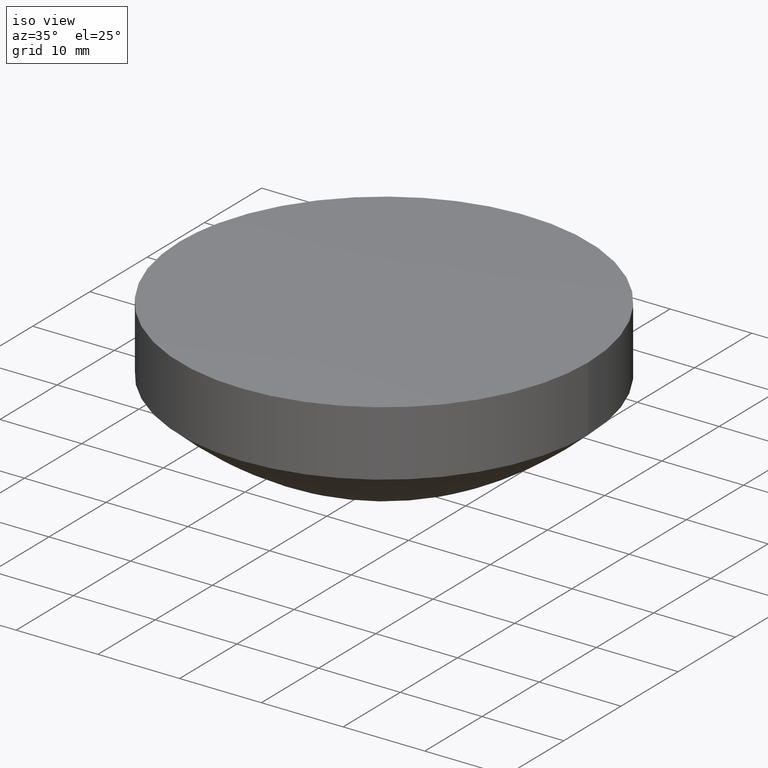
[diagram: clean part render]
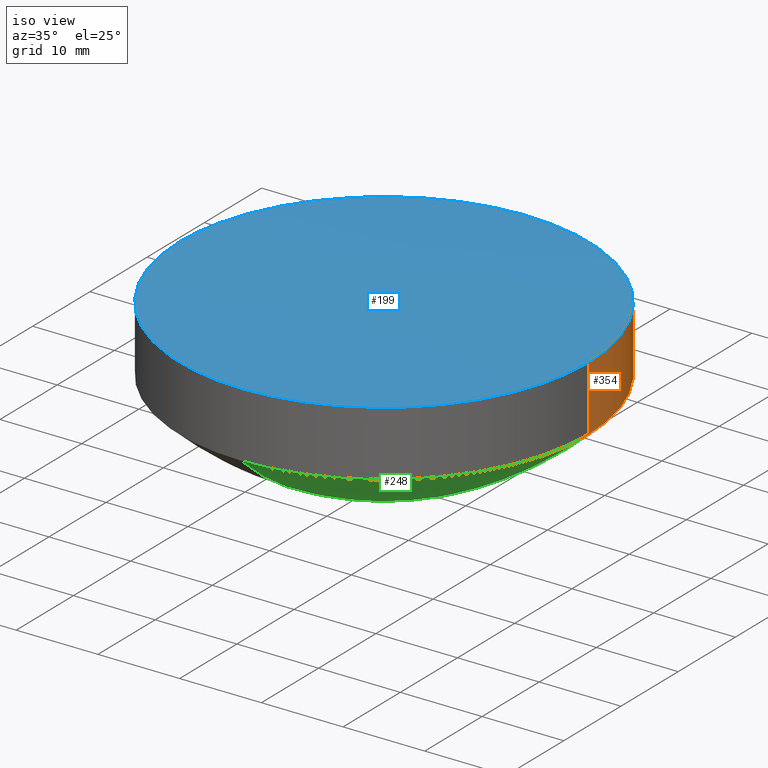
[diagram: same view with three faces highlighted in distinct colors, each labeled with its STEP entity id]
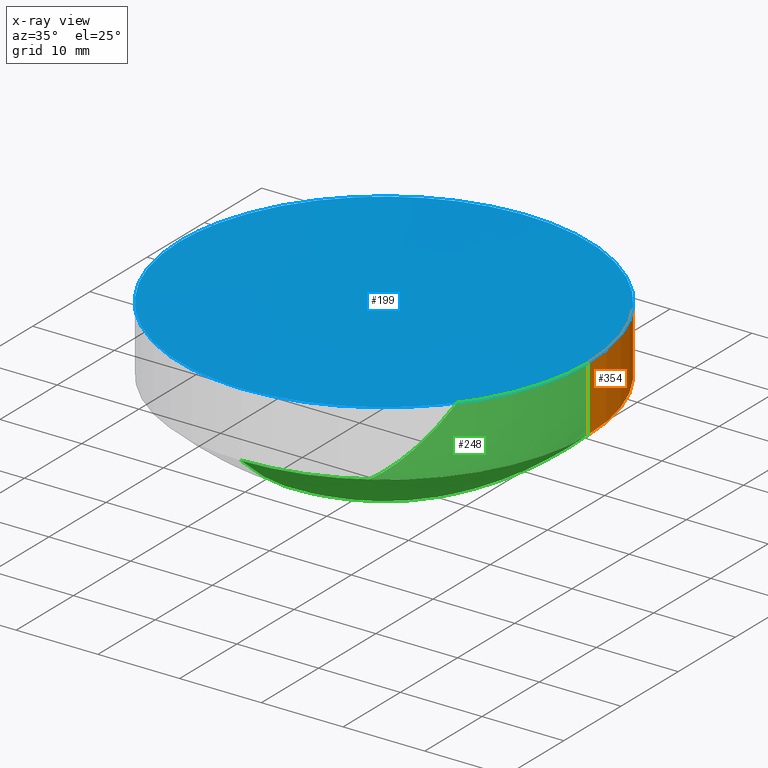
[diagram: x-ray of the same camera — body ghosted, the three highlighted faces saturated]
A machine part, iso view with three faces highlighted in distinct colors.
The next image is the same camera in x-ray (body ghosted, the three faces saturated) — at least one of them is partly hidden behind the body in this view.
Their STEP definitions:

[orange] entity #354 — the highlighted cylindrical surface (partial cylindrical patch) has radius 25 mm, axis along (0, 0, 1).
#28 = EDGE_CURVE ( 'NONE', #44, #234, #72, .T. ) ;
#37 = AXIS2_PLACEMENT_3D ( 'NONE', #368, #622, #98 ) ;
#39 = CARTESIAN_POINT ( 'NONE',  ( -25.00000000000000000, 3.061616997868379887E-15, 10.76935298651310191 ) ) ;
#44 = VERTEX_POINT ( 'NONE', #444 ) ;
#48 = VERTEX_POINT ( 'NONE', #602 ) ;
#70 = CARTESIAN_POINT ( 'NONE',  ( 25.00000000000000000, 0.000000000000000000, 18.77460888595450328 ) ) ;
#72 =( BOUNDED_CURVE ( )  B_SPLINE_CURVE ( 2, ( #340, #121, #227 ),
 .UNSPECIFIED., .F., .F. ) 
 B_SPLINE_CURVE_WITH_KNOTS ( ( 3, 3 ),
 ( 0.000000000000000000, 1.570796326794899667 ),
 .UNSPECIFIED. ) 
 CURVE ( )  GEOMETRIC_REPRESENTATION_ITEM ( )  RATIONAL_B_SPLINE_CURVE ( ( 1.000000000000000000, 0.7071067811865480168, 1.000000000000000000 ) ) 
 REPRESENTATION_ITEM ( '' )  );
#75 = VERTEX_POINT ( 'NONE', #336 ) ;
#81 = CARTESIAN_POINT ( 'NONE',  ( 1.530808498934190141E-15, 25.00000000000000000, 18.77460888595450328 ) ) ;
#98 = DIRECTION ( 'NONE',  ( 1.000000000000000000, 7.105427357601000774E-17, 0.000000000000000000 ) ) ;
#121 = CARTESIAN_POINT ( 'NONE',  ( 25.00000000000000000, 25.00000000000000000, 10.76935298651310546 ) ) ;
#144 = CARTESIAN_POINT ( 'NONE',  ( 1.530808498934190141E-15, 25.00000000000000000, 10.76935298651310191 ) ) ;
#169 =( BOUNDED_CURVE ( )  B_SPLINE_CURVE ( 2, ( #315, #202, #81, #626, #249 ),
 .UNSPECIFIED., .F., .F. ) 
 B_SPLINE_CURVE_WITH_KNOTS ( ( 3, 2, 3 ),
 ( 0.000000000000000000, 1.570796326794899889, 3.141592653589790007 ),
 .UNSPECIFIED. ) 
 CURVE ( )  GEOMETRIC_REPRESENTATION_ITEM ( )  RATIONAL_B_SPLINE_CURVE ( ( 1.000000000000000000, 0.7071067811865480168, 1.000000000000000000, 0.7071067811865480168, 1.000000000000000000 ) ) 
 REPRESENTATION_ITEM ( '' )  );
#197 = CARTESIAN_POINT ( 'NONE',  ( -25.00000000000000000, 3.061616997868379887E-15, 10.76935298651310191 ) ) ;
#202 = CARTESIAN_POINT ( 'NONE',  ( 25.00000000000000000, 25.00000000000000000, 18.77460888595448907 ) ) ;
#227 = CARTESIAN_POINT ( 'NONE',  ( 1.530808498934190141E-15, 25.00000000000000000, 10.76935298651310191 ) ) ;
#234 = VERTEX_POINT ( 'NONE', #515 ) ;
#243 = CYLINDRICAL_SURFACE ( 'NONE', #37, 25.00000000000000000 ) ;
#249 = CARTESIAN_POINT ( 'NONE',  ( -25.00000000000000000, 3.061616997868379887E-15, 18.77460888595450328 ) ) ;
#254 = CARTESIAN_POINT ( 'NONE',  ( -25.00000000000000000, 25.00000000000000000, 10.76935298651310546 ) ) ;
#315 = CARTESIAN_POINT ( 'NONE',  ( 25.00000000000000000, 0.000000000000000000, 18.77460888595450328 ) ) ;
#336 = CARTESIAN_POINT ( 'NONE',  ( 25.00000000000000000, 0.000000000000000000, 18.77460888595450328 ) ) ;
#340 = CARTESIAN_POINT ( 'NONE',  ( 25.00000000000000000, 0.000000000000000000, 10.76935298651310191 ) ) ;
#354 = ADVANCED_FACE ( 'NONE', ( #418 ), #243, .T. ) ;
#368 = CARTESIAN_POINT ( 'NONE',  ( 1.776356839400249676E-15, -1.776356839400249676E-15, 10.76935298651310191 ) ) ;
#371 = B_SPLINE_CURVE_WITH_KNOTS ( 'NONE', 1,
 ( #443, #70 ),
 .UNSPECIFIED., .F., .F.,
 ( 2, 2 ),
 ( 0.000000000000000000, 1.000000000000000000 ),
 .UNSPECIFIED. ) ;
#397 = ORIENTED_EDGE ( 'NONE', *, *, #28, .T. ) ;
#403 = VERTEX_POINT ( 'NONE', #565 ) ;
#408 = B_SPLINE_CURVE_WITH_KNOTS ( 'NONE', 1,
 ( #39, #676 ),
 .UNSPECIFIED., .F., .F.,
 ( 2, 2 ),
 ( 0.000000000000000000, 1.000000000000000000 ),
 .UNSPECIFIED. ) ;
#418 = FACE_OUTER_BOUND ( 'NONE', #655, .T. ) ;
#438 = EDGE_CURVE ( 'NONE', #234, #48, #639, .T. ) ;
#443 = CARTESIAN_POINT ( 'NONE',  ( 25.00000000000000000, 0.000000000000000000, 10.76935298651310191 ) ) ;
#444 = CARTESIAN_POINT ( 'NONE',  ( 25.00000000000000000, 0.000000000000000000, 10.76935298651310191 ) ) ;
#452 = ORIENTED_EDGE ( 'NONE', *, *, #438, .T. ) ;
#476 = ORIENTED_EDGE ( 'NONE', *, *, #521, .T. ) ;
#507 = ORIENTED_EDGE ( 'NONE', *, *, #600, .F. ) ;
#515 = CARTESIAN_POINT ( 'NONE',  ( 1.530808498934190141E-15, 25.00000000000000000, 10.76935298651310191 ) ) ;
#521 = EDGE_CURVE ( 'NONE', #48, #403, #408, .T. ) ;
#530 = EDGE_CURVE ( 'NONE', #75, #403, #169, .T. ) ;
#565 = CARTESIAN_POINT ( 'NONE',  ( -25.00000000000000000, 3.061616997868379887E-15, 18.77460888595450328 ) ) ;
#600 = EDGE_CURVE ( 'NONE', #44, #75, #371, .T. ) ;
#602 = CARTESIAN_POINT ( 'NONE',  ( -25.00000000000000000, 3.061616997868379887E-15, 10.76935298651310191 ) ) ;
#604 = ORIENTED_EDGE ( 'NONE', *, *, #530, .F. ) ;
#622 = DIRECTION ( 'NONE',  ( 0.000000000000000000, 0.000000000000000000, 1.000000000000000000 ) ) ;
#626 = CARTESIAN_POINT ( 'NONE',  ( -25.00000000000000000, 25.00000000000000000, 18.77460888595448907 ) ) ;
#639 =( BOUNDED_CURVE ( )  B_SPLINE_CURVE ( 2, ( #144, #254, #197 ),
 .UNSPECIFIED., .F., .F. ) 
 B_SPLINE_CURVE_WITH_KNOTS ( ( 3, 3 ),
 ( 1.570796326794899889, 3.141592653589790007 ),
 .UNSPECIFIED. ) 
 CURVE ( )  GEOMETRIC_REPRESENTATION_ITEM ( )  RATIONAL_B_SPLINE_CURVE ( ( 1.000000000000000000, 0.7071067811865480168, 1.000000000000000000 ) ) 
 REPRESENTATION_ITEM ( '' )  );
#655 = EDGE_LOOP ( 'NONE', ( #397, #452, #476, #604, #507 ) ) ;
#676 = CARTESIAN_POINT ( 'NONE',  ( -25.00000000000000000, 3.061616997868379887E-15, 18.77460888595450328 ) ) ;

[blue] entity #199 — the highlighted spherical surface has radius 500 mm.
#18 = FACE_OUTER_BOUND ( 'NONE', #608, .T. ) ;
#75 = VERTEX_POINT ( 'NONE', #336 ) ;
#81 = CARTESIAN_POINT ( 'NONE',  ( 1.530808498934190141E-15, 25.00000000000000000, 18.77460888595450328 ) ) ;
#93 = CARTESIAN_POINT ( 'NONE',  ( 25.00000000000000000, -25.00000000000000000, 18.77460888595448907 ) ) ;
#130 = ORIENTED_EDGE ( 'NONE', *, *, #530, .T. ) ;
#135 = CARTESIAN_POINT ( 'NONE',  ( -25.00000000000000000, 3.061616997868379887E-15, 18.77460888595450328 ) ) ;
#139 =( BOUNDED_CURVE ( )  B_SPLINE_CURVE ( 2, ( #135, #471, #522, #93, #239 ),
 .UNSPECIFIED., .F., .F. ) 
 B_SPLINE_CURVE_WITH_KNOTS ( ( 3, 2, 3 ),
 ( 3.141592653589790007, 4.712388980384689674, 6.283185307179590673 ),
 .UNSPECIFIED. ) 
 CURVE ( )  GEOMETRIC_REPRESENTATION_ITEM ( )  RATIONAL_B_SPLINE_CURVE ( ( 1.000000000000000000, 0.7071067811865480168, 1.000000000000000000, 0.7071067811865480168, 1.000000000000000000 ) ) 
 REPRESENTATION_ITEM ( '' )  );
#169 =( BOUNDED_CURVE ( )  B_SPLINE_CURVE ( 2, ( #315, #202, #81, #626, #249 ),
 .UNSPECIFIED., .F., .F. ) 
 B_SPLINE_CURVE_WITH_KNOTS ( ( 3, 2, 3 ),
 ( 0.000000000000000000, 1.570796326794899889, 3.141592653589790007 ),
 .UNSPECIFIED. ) 
 CURVE ( )  GEOMETRIC_REPRESENTATION_ITEM ( )  RATIONAL_B_SPLINE_CURVE ( ( 1.000000000000000000, 0.7071067811865480168, 1.000000000000000000, 0.7071067811865480168, 1.000000000000000000 ) ) 
 REPRESENTATION_ITEM ( '' )  );
#199 = ADVANCED_FACE ( 'NONE', ( #18 ), #447, .T. ) ;
#202 = CARTESIAN_POINT ( 'NONE',  ( 25.00000000000000000, 25.00000000000000000, 18.77460888595448907 ) ) ;
#239 = CARTESIAN_POINT ( 'NONE',  ( 25.00000000000000000, 0.000000000000000000, 18.77460888595450328 ) ) ;
#249 = CARTESIAN_POINT ( 'NONE',  ( -25.00000000000000000, 3.061616997868379887E-15, 18.77460888595450328 ) ) ;
#315 = CARTESIAN_POINT ( 'NONE',  ( 25.00000000000000000, 0.000000000000000000, 18.77460888595450328 ) ) ;
#336 = CARTESIAN_POINT ( 'NONE',  ( 25.00000000000000000, 0.000000000000000000, 18.77460888595450328 ) ) ;
#394 = DIRECTION ( 'NONE',  ( 0.000000000000000000, -1.000000000000000000, 4.440892098500626162E-16 ) ) ;
#403 = VERTEX_POINT ( 'NONE', #565 ) ;
#447 = SPHERICAL_SURFACE ( 'NONE', #586, 500.0000000000000000 ) ;
#471 = CARTESIAN_POINT ( 'NONE',  ( -25.00000000000000000, -25.00000000000000000, 18.77460888595448907 ) ) ;
#473 = EDGE_CURVE ( 'NONE', #403, #75, #139, .T. ) ;
#505 = ORIENTED_EDGE ( 'NONE', *, *, #473, .T. ) ;
#522 = CARTESIAN_POINT ( 'NONE',  ( -4.592425496802569633E-15, -25.00000000000000000, 18.77460888595450328 ) ) ;
#530 = EDGE_CURVE ( 'NONE', #75, #403, #169, .T. ) ;
#546 = DIRECTION ( 'NONE',  ( 0.000000000000000000, 4.440892098500626162E-16, 1.000000000000000000 ) ) ;
#565 = CARTESIAN_POINT ( 'NONE',  ( -25.00000000000000000, 3.061616997868379887E-15, 18.77460888595450328 ) ) ;
#586 = AXIS2_PLACEMENT_3D ( 'NONE', #598, #546, #394 ) ;
#598 = CARTESIAN_POINT ( 'NONE',  ( -5.684341886080798963E-14, 8.526512829121199706E-14, -480.6000000000000227 ) ) ;
#608 = EDGE_LOOP ( 'NONE', ( #130, #505 ) ) ;
#626 = CARTESIAN_POINT ( 'NONE',  ( -25.00000000000000000, 25.00000000000000000, 18.77460888595448907 ) ) ;

[green] entity #248 — the highlighted face is a freeform B-spline surface patch.
#3 = CARTESIAN_POINT ( 'NONE',  ( 9.031328295233830517, -6.766054006596770075E-15, 1.329141889889509986 ) ) ;
#6 = CARTESIAN_POINT ( 'NONE',  ( 4.864470756008749674, -6.000614694409519705E-15, 0.3780127833940800097 ) ) ;
#9 = CARTESIAN_POINT ( 'NONE',  ( -3.823211282214358242, -3.823211282214336926, 0.2278546630517423177 ) ) ;
#15 = CARTESIAN_POINT ( 'NONE',  ( -1.215333604269309965E-14, -19.46172094395829788, 6.363201708622150399 ) ) ;
#21 = CARTESIAN_POINT ( 'NONE',  ( 0.000000000000000000, 0.000000000000000000, 0.000000000000000000 ) ) ;
#23 = CARTESIAN_POINT ( 'NONE',  ( -19.46172094395829788, 5.854623416421539817E-15, 6.363201708622150399 ) ) ;
#24 = CARTESIAN_POINT ( 'NONE',  ( 0.000000000000000000, 13.20684684988859914, 2.866247647743300320 ) ) ;
#25 = CARTESIAN_POINT ( 'NONE',  ( 0.000000000000000000, 0.000000000000000000, 0.000000000000000000 ) ) ;
#26 = CARTESIAN_POINT ( 'NONE',  ( 18.40959124445349815, -8.488812961945388815E-15, 5.677625292109239830 ) ) ;
#27 = CARTESIAN_POINT ( 'NONE',  ( 0.000000000000000000, 19.46172094395829788, 6.363201708622150399 ) ) ;
#28 = EDGE_CURVE ( 'NONE', #44, #234, #72, .T. ) ;
#29 = CARTESIAN_POINT ( 'NONE',  ( 0.000000000000000000, 13.20684684988859914, 2.866247647743300320 ) ) ;
#30 = CARTESIAN_POINT ( 'NONE',  ( 0.000000000000000000, 2.778867257252229717, 0.1218098665559840116 ) ) ;
#31 = CARTESIAN_POINT ( 'NONE',  ( -20.85846900400949977, -20.85846900400949977, 7.346323978459765591 ) ) ;
#32 = CARTESIAN_POINT ( 'NONE',  ( 2.778867257252236378, 2.778867257252229273, 0.1218098665559840255 ) ) ;
#33 = CARTESIAN_POINT ( 'NONE',  ( -11.11853514199950688, -11.11853514199950688, 2.021718256513889589 ) ) ;
#34 = CARTESIAN_POINT ( 'NONE',  ( 24.99999999999999645, -25.00000000000025935, 10.76935298651310546 ) ) ;
#35 = CARTESIAN_POINT ( 'NONE',  ( 20.85846900400950332, -8.938664508406890628E-15, 7.346323978459770032 ) ) ;
#36 = CARTESIAN_POINT ( 'NONE',  ( 25.00000000000000355, -25.00000000000000355, 10.76935298651310546 ) ) ;
#38 = CARTESIAN_POINT ( 'NONE',  ( -16.33441800193228133, 16.33441800193239146, 4.430272686558109463 ) ) ;
#40 = CARTESIAN_POINT ( 'NONE',  ( 0.000000000000000000, 24.15614782068159982, 10.00039978366080184 ) ) ;
#42 = CARTESIAN_POINT ( 'NONE',  ( 13.20684684988859914, -7.533084321507529499E-15, 2.866247647743300320 ) ) ;
#44 = VERTEX_POINT ( 'NONE', #444 ) ;
#46 = CARTESIAN_POINT ( 'NONE',  ( 0.000000000000000000, 9.031328295233830517, 1.329141889889509986 ) ) ;
#47 = CARTESIAN_POINT ( 'NONE',  ( -1.125882628438199991E-14, -12.15749446058419814, 2.427402912589510464 ) ) ;
#51 = CARTESIAN_POINT ( 'NONE',  ( -1.049313046363300038E-14, -5.905113600387469575, 0.5636193277801669899 ) ) ;
#55 = CARTESIAN_POINT ( 'NONE',  ( 4.864470756008748786, -4.864470756008769214, 0.3780127833940796767 ) ) ;
#58 = CARTESIAN_POINT ( 'NONE',  ( 0.000000000000000000, 5.905113600387469575, 0.5636193277801659907 ) ) ;
#61 = CARTESIAN_POINT ( 'NONE',  ( -1.023817096262419816E-14, -3.823211282214349804, 0.2278546630517420124 ) ) ;
#67 = CARTESIAN_POINT ( 'NONE',  ( -1.283157961456979886E-14, -25.00000000000000000, 10.76935298651310191 ) ) ;
#71 = CARTESIAN_POINT ( 'NONE',  ( -1.202448731581449846E-14, -18.40959124445349815, 5.677625292109239830 ) ) ;
#72 =( BOUNDED_CURVE ( )  B_SPLINE_CURVE ( 2, ( #340, #121, #227 ),
 .UNSPECIFIED., .F., .F. ) 
 B_SPLINE_CURVE_WITH_KNOTS ( ( 3, 3 ),
 ( 0.000000000000000000, 1.570796326794899667 ),
 .UNSPECIFIED. ) 
 CURVE ( )  GEOMETRIC_REPRESENTATION_ITEM ( )  RATIONAL_B_SPLINE_CURVE ( ( 1.000000000000000000, 0.7071067811865480168, 1.000000000000000000 ) ) 
 REPRESENTATION_ITEM ( '' )  );
#77 = CARTESIAN_POINT ( 'NONE',  ( 7.888609052210119806E-31, 15.28359183643270036, 3.871337583447099995 ) ) ;
#80 = CARTESIAN_POINT ( 'NONE',  ( 2.778867257252229717, -5.617495547053119648E-15, 0.1218098665559829985 ) ) ;
#82 = CARTESIAN_POINT ( 'NONE',  ( -24.15614782068171706, -24.15614782068157851, 10.00039978366080007 ) ) ;
#83 = CARTESIAN_POINT ( 'NONE',  ( 1.564219604220981052, -1.564219604220997928, 0.02941336789115638062 ) ) ;
#85 = CARTESIAN_POINT ( 'NONE',  ( 22.79029073525660110, -22.79029073525660110, 8.829490268801800212 ) ) ;
#86 = CARTESIAN_POINT ( 'NONE',  ( -0.6950013867032635018, -0.6950013867032492909, 0.000000000000000000 ) ) ;
#88 = CARTESIAN_POINT ( 'NONE',  ( -11.11853514199950688, 11.11853514199950688, 2.021718256513889589 ) ) ;
#89 = CARTESIAN_POINT ( 'NONE',  ( 0.000000000000000000, 5.905113600387469575, 0.5636193277801659907 ) ) ;
#90 = CARTESIAN_POINT ( 'NONE',  ( 0.000000000000000000, 25.00000000000000000, 10.76935298651310191 ) ) ;
#91 = CARTESIAN_POINT ( 'NONE',  ( 25.00000000000000000, -9.699451410078289719E-15, 10.76935298651310191 ) ) ;
#92 = CARTESIAN_POINT ( 'NONE',  ( -13.20684684988859914, 5.471622839502929115E-15, 2.866247647743300320 ) ) ;
#94 = CARTESIAN_POINT ( 'NONE',  ( -1.232438834678879987E-14, -20.85846900400950332, 7.346323978459770032 ) ) ;
#95 = CARTESIAN_POINT ( 'NONE',  ( -1.049313046363300038E-14, -5.905113600387469575, 0.5636193277801669899 ) ) ;
#97 = CARTESIAN_POINT ( 'NONE',  ( 0.000000000000000000, 16.33441800193239857, 4.430272686558109463 ) ) ;
#101 = CARTESIAN_POINT ( 'NONE',  ( 7.888609052210119806E-31, 15.28359183643270036, 3.871337583447099995 ) ) ;
#104 = CARTESIAN_POINT ( 'NONE',  ( -7.888609052210119806E-31, 4.864470756008760333, 0.3780127833940810089 ) ) ;
#108 = CARTESIAN_POINT ( 'NONE',  ( -7.991543677521645961, 7.991543677521645961, 1.035149238036799257 ) ) ;
#111 = CARTESIAN_POINT ( 'NONE',  ( -5.905113600387489114, -5.905113600387467798, 0.5636193277801673229 ) ) ;
#114 = CARTESIAN_POINT ( 'NONE',  ( -5.905113600387480233, 5.024520626891460206E-15, 0.5636193277801669899 ) ) ;
#121 = CARTESIAN_POINT ( 'NONE',  ( 25.00000000000000000, 25.00000000000000000, 10.76935298651310546 ) ) ;
#123 = CARTESIAN_POINT ( 'NONE',  ( -1.164166279889760023E-14, -15.28359183643270036, 3.871337583447099995 ) ) ;
#125 = VERTEX_POINT ( 'NONE', #503 ) ;
#128 = CARTESIAN_POINT ( 'NONE',  ( 3.823211282214340034, -5.809338432159899713E-15, 0.2278546630517420124 ) ) ;
#131 = CARTESIAN_POINT ( 'NONE',  ( 0.000000000000000000, 20.85846900400950332, 7.346323978459770032 ) ) ;
#133 = CARTESIAN_POINT ( 'NONE',  ( 17.37214179088920574, 17.37214179088920574, 5.033512682667418581 ) ) ;
#134 = CARTESIAN_POINT ( 'NONE',  ( -9.961524269848648577E-15, -1.564219604220989712, 0.02941336789115640143 ) ) ;
#136 = CARTESIAN_POINT ( 'NONE',  ( 0.000000000000000000, 16.33441800193239857, 4.430272686558109463 ) ) ;
#137 = CARTESIAN_POINT ( 'NONE',  ( 0.000000000000000000, 0.6950013867032539538, 0.000000000000000000 ) ) ;
#138 = CARTESIAN_POINT ( 'NONE',  ( -1.177035188890149828E-14, -16.33441800193239857, 4.430272686558109463 ) ) ;
#140 = CARTESIAN_POINT ( 'NONE',  ( 0.000000000000000000, 18.40959124445349815, 5.677625292109239830 ) ) ;
#141 = CARTESIAN_POINT ( 'NONE',  ( -1.074864445519370031E-14, -7.991543677521639744, 1.035149238036800146 ) ) ;
#142 = CARTESIAN_POINT ( 'NONE',  ( -1.564219604220999926, 4.758717529999299291E-15, 0.02941336789115570061 ) ) ;
#143 = CARTESIAN_POINT ( 'NONE',  ( -10.07908763383689887, 10.07908763383699835, 1.653328185034991238 ) ) ;
#145 = CARTESIAN_POINT ( 'NONE',  ( -18.40959124445349815, 5.790199052982209243E-15, 5.677625292109239830 ) ) ;
#146 = CARTESIAN_POINT ( 'NONE',  ( -1.100429485761179963E-14, -10.07908763383690065, 1.653328185035000120 ) ) ;
#149 = CARTESIAN_POINT ( 'NONE',  ( 0.000000000000000000, 14.24541506404810143, 3.349350597949509734 ) ) ;
#152 = CARTESIAN_POINT ( 'NONE',  ( -15.28359183643270036, 5.598786794523760128E-15, 3.871337583447099995 ) ) ;
#153 = B_SPLINE_CURVE_WITH_KNOTS ( 'NONE', 3,
 ( #67, #284, #390, #500, #15, #71, #649, #175, #123, #288, #173, #232, #223, #146, #464, #141, #572, #95, #200, #303, #469, #674, #420, #252 ),
 .UNSPECIFIED., .F., .F.,
 ( 4, 1, 1, 1, 1, 1, 1, 1, 1, 1, 1, 1, 1, 1, 1, 1, 1, 1, 1, 1, 1, 4 ),
 ( 0.000000000000000000, 0.1229010503966929957, 0.1935708684875130092, 0.2621222389561400079, 0.3067336890552199713, 0.3287332553817179925, 0.3935804273098579831, 0.4359173143977180254, 0.4568373513230660210, 0.5186738697918750196, 0.5591905958425089640, 0.5792556588951830454, 0.6387441682536969534, 0.6778732220164499500, 0.6972968285093580354, 0.7550674466977830290, 0.7932207973581240079, 0.8122067193442279454, 0.8688628073624710124, 0.9064369206342729468, 0.9251819328508389395, 1.000000000000000000 ),
 .UNSPECIFIED. ) ;
#156 = CARTESIAN_POINT ( 'NONE',  ( 0.000000000000000000, 10.07908763383690065, 1.653328185034990128 ) ) ;
#159 = CARTESIAN_POINT ( 'NONE',  ( 10.07908763383690065, -6.958524274641328746E-15, 1.653328185035000120 ) ) ;
#163 = CARTESIAN_POINT ( 'NONE',  ( -3.823211282214351581, 3.823211282214351581, 0.2278546630517423177 ) ) ;
#166 = CARTESIAN_POINT ( 'NONE',  ( 0.000000000000000000, 6.951195123766310324, 0.7773047103505090760 ) ) ;
#173 = CARTESIAN_POINT ( 'NONE',  ( -1.138733488885590034E-14, -13.20684684988859914, 2.866247647743300320 ) ) ;
#175 = CARTESIAN_POINT ( 'NONE',  ( -1.177035188890149828E-14, -16.33441800193239857, 4.430272686558109463 ) ) ;
#177 = VERTEX_POINT ( 'NONE', #646 ) ;
#181 = ORIENTED_EDGE ( 'NONE', *, *, #28, .F. ) ;
#183 = CARTESIAN_POINT ( 'NONE',  ( 0.000000000000000000, 24.15614782068159982, 10.00039978366080184 ) ) ;
#184 = B_SPLINE_CURVE_WITH_KNOTS ( 'NONE', 3,
 ( #606, #183, #554, #131, #27, #304, #189, #246, #77, #516, #24, #410, #236, #465, #455, #355, #187, #89, #357, #306, #30, #310, #570, #25 ),
 .UNSPECIFIED., .F., .F.,
 ( 4, 1, 1, 1, 1, 1, 1, 1, 1, 1, 1, 1, 1, 1, 1, 1, 1, 1, 1, 1, 1, 4 ),
 ( 0.000000000000000000, 0.1229010503966929957, 0.1935708684875130092, 0.2621222389561400079, 0.3067336890552199713, 0.3287332553817179925, 0.3935804273098579831, 0.4359173143977180254, 0.4568373513230660210, 0.5186738697918750196, 0.5591905958425089640, 0.5792556588951830454, 0.6387441682536969534, 0.6778732220164499500, 0.6972968285093580354, 0.7550674466977830290, 0.7932207973581240079, 0.8122067193442279454, 0.8688628073624710124, 0.9064369206342729468, 0.9251819328508389395, 1.000000000000000000 ),
 .UNSPECIFIED. ) ;
#185 = CARTESIAN_POINT ( 'NONE',  ( 7.888609052210119806E-31, 22.79029073525660110, 8.829490268801798436 ) ) ;
#186 = CARTESIAN_POINT ( 'NONE',  ( 0.000000000000000000, 2.778867257252229717, 0.1218098665559840116 ) ) ;
#187 = CARTESIAN_POINT ( 'NONE',  ( 0.000000000000000000, 6.951195123766310324, 0.7773047103505090760 ) ) ;
#188 = CARTESIAN_POINT ( 'NONE',  ( 0.000000000000000000, 20.85846900400950332, 7.346323978459770032 ) ) ;
#189 = CARTESIAN_POINT ( 'NONE',  ( 0.000000000000000000, 17.37214179088919863, 5.033512682667420357 ) ) ;
#190 = CARTESIAN_POINT ( 'NONE',  ( 0.000000000000000000, 11.11853514199949977, 2.021718256513890033 ) ) ;
#193 = CARTESIAN_POINT ( 'NONE',  ( 19.46172094395830143, -19.46172094395830143, 6.363201708622155728 ) ) ;
#195 = CARTESIAN_POINT ( 'NONE',  ( -1.564219604220989490, 1.564219604220997928, 0.02941336789115489223 ) ) ;
#196 = CARTESIAN_POINT ( 'NONE',  ( 0.000000000000000000, 11.11853514199949977, 2.021718256513890033 ) ) ;
#198 = CARTESIAN_POINT ( 'NONE',  ( 22.79029073525660110, 22.79029073525660110, 8.829490268801800212 ) ) ;
#200 = CARTESIAN_POINT ( 'NONE',  ( -1.036568847079060044E-14, -4.864470756008760333, 0.3780127833940800097 ) ) ;
#201 = CARTESIAN_POINT ( 'NONE',  ( 14.24541506404810143, -7.723866207382518999E-15, 3.349350597949509734 ) ) ;
#204 = CARTESIAN_POINT ( 'NONE',  ( 11.11853514199950688, 11.11853514199950688, 2.021718256513889589 ) ) ;
#206 = CARTESIAN_POINT ( 'NONE',  ( -9.031328295233839398, 5.215946067866010359E-15, 1.329141889889509986 ) ) ;
#210 = CARTESIAN_POINT ( 'NONE',  ( -1.087598134558209911E-14, -9.031328295233830517, 1.329141889889509986 ) ) ;
#213 = CARTESIAN_POINT ( 'NONE',  ( 4.864470756008762109, 4.864470756008748786, 0.3780127833940811755 ) ) ;
#216 = CARTESIAN_POINT ( 'NONE',  ( 10.07908763383689887, -10.07908763383699835, 1.653328185034999676 ) ) ;
#218 = EDGE_CURVE ( 'NONE', #177, #125, #153, .T. ) ;
#223 = CARTESIAN_POINT ( 'NONE',  ( -1.113159046398710005E-14, -11.11853514199949977, 2.021718256513890033 ) ) ;
#227 = CARTESIAN_POINT ( 'NONE',  ( 1.530808498934190141E-15, 25.00000000000000000, 10.76935298651310191 ) ) ;
#232 = CARTESIAN_POINT ( 'NONE',  ( -1.125882628438199991E-14, -12.15749446058419814, 2.427402912589510464 ) ) ;
#234 = VERTEX_POINT ( 'NONE', #515 ) ;
#236 = CARTESIAN_POINT ( 'NONE',  ( 0.000000000000000000, 11.11853514199949977, 2.021718256513890033 ) ) ;
#237 = CARTESIAN_POINT ( 'NONE',  ( -17.37214179088919863, 5.726673595352979530E-15, 5.033512682667420357 ) ) ;
#238 = CARTESIAN_POINT ( 'NONE',  ( -9.855075739064291030E-15, -0.6950013867032539538, 0.000000000000000000 ) ) ;
#240 = CARTESIAN_POINT ( 'NONE',  ( 18.40959124445348394, 18.40959124445348394, 5.677625292109241606 ) ) ;
#241 = CARTESIAN_POINT ( 'NONE',  ( 0.000000000000000000, 2.778867257252229717, 0.1218098665559840116 ) ) ;
#242 = CARTESIAN_POINT ( 'NONE',  ( 12.15749446058419814, -7.340321414796639418E-15, 2.427402912589510464 ) ) ;
#244 = CARTESIAN_POINT ( 'NONE',  ( -1.272823752753419907E-14, -24.15614782068159982, 10.00039978366080184 ) ) ;
#245 = CARTESIAN_POINT ( 'NONE',  ( 0.000000000000000000, 25.00000000000000000, 10.76935298651310191 ) ) ;
#246 = CARTESIAN_POINT ( 'NONE',  ( 0.000000000000000000, 16.33441800193239857, 4.430272686558109463 ) ) ;
#247 = CARTESIAN_POINT ( 'NONE',  ( -1.113159046398710005E-14, -11.11853514199949977, 2.021718256513890033 ) ) ;
#248 = ADVANCED_FACE ( 'NONE', ( #308 ), #568, .T. ) ;
#251 = CARTESIAN_POINT ( 'NONE',  ( 0.000000000000000000, 19.46172094395829788, 6.363201708622150399 ) ) ;
#252 = CARTESIAN_POINT ( 'NONE',  ( 0.000000000000000000, 0.000000000000000000, 0.000000000000000000 ) ) ;
#253 = CARTESIAN_POINT ( 'NONE',  ( -14.24541506404807834, -14.24541506404807834, 3.349350597949512842 ) ) ;
#255 = CARTESIAN_POINT ( 'NONE',  ( 0.000000000000000000, 20.85846900400950332, 7.346323978459770032 ) ) ;
#257 = CARTESIAN_POINT ( 'NONE',  ( -12.15749446058419814, 5.407368537265959970E-15, 2.427402912589510464 ) ) ;
#261 = CARTESIAN_POINT ( 'NONE',  ( 9.031328295233834069, 9.031328295233819858, 1.329141889889510431 ) ) ;
#262 = CARTESIAN_POINT ( 'NONE',  ( -13.20684684988860091, -13.20684684988860091, 2.866247647743300764 ) ) ;
#266 = CARTESIAN_POINT ( 'NONE',  ( 0.000000000000000000, 9.031328295233830517, 1.329141889889509986 ) ) ;
#269 = CARTESIAN_POINT ( 'NONE',  ( -10.07908763383699835, -10.07908763383689887, 1.653328185034999676 ) ) ;
#273 = CARTESIAN_POINT ( 'NONE',  ( -4.864470756008762109, 4.864470756008762109, 0.3780127833940811755 ) ) ;
#277 = CARTESIAN_POINT ( 'NONE',  ( -7.991543677521645961, -7.991543677521645961, 1.035149238036799257 ) ) ;
#284 = CARTESIAN_POINT ( 'NONE',  ( -1.272823752753419907E-14, -24.15614782068159982, 10.00039978366080184 ) ) ;
#288 = CARTESIAN_POINT ( 'NONE',  ( -1.151452281277259944E-14, -14.24541506404810143, 3.349350597949509734 ) ) ;
#292 = ORIENTED_EDGE ( 'NONE', *, *, #218, .T. ) ;
#294 = CARTESIAN_POINT ( 'NONE',  ( 0.000000000000000000, 0.000000000000000000, 0.000000000000000000 ) ) ;
#295 = ORIENTED_EDGE ( 'NONE', *, *, #296, .F. ) ;
#296 = EDGE_CURVE ( 'NONE', #234, #125, #184, .T. ) ;
#297 = CARTESIAN_POINT ( 'NONE',  ( 0.000000000000000000, 0.000000000000000000, 0.000000000000000000 ) ) ;
#299 = CARTESIAN_POINT ( 'NONE',  ( -20.85846900400950332, 5.940149568469379669E-15, 7.346323978459770032 ) ) ;
#300 = CARTESIAN_POINT ( 'NONE',  ( 0.6950013867032536208, 0.6950013867032492909, 0.000000000000000000 ) ) ;
#302 = CARTESIAN_POINT ( 'NONE',  ( 7.888609052210119806E-31, 22.79029073525660110, 8.829490268801798436 ) ) ;
#303 = CARTESIAN_POINT ( 'NONE',  ( -1.023817096262419816E-14, -3.823211282214349804, 0.2278546630517420124 ) ) ;
#304 = CARTESIAN_POINT ( 'NONE',  ( 0.000000000000000000, 18.40959124445349815, 5.677625292109239830 ) ) ;
#305 = CARTESIAN_POINT ( 'NONE',  ( 14.24541506404807834, -14.24541506404807834, 3.349350597949512842 ) ) ;
#306 = CARTESIAN_POINT ( 'NONE',  ( 0.000000000000000000, 3.823211282214349804, 0.2278546630517420124 ) ) ;
#307 = CARTESIAN_POINT ( 'NONE',  ( 22.79029073525660110, -9.293534403361159775E-15, 8.829490268801798436 ) ) ;
#308 = FACE_OUTER_BOUND ( 'NONE', #319, .T. ) ;
#309 = CARTESIAN_POINT ( 'NONE',  ( 0.000000000000000000, 12.15749446058419814, 2.427402912589510464 ) ) ;
#310 = CARTESIAN_POINT ( 'NONE',  ( 7.888609052210119806E-31, 1.564219604220989712, 0.02941336789115490263 ) ) ;
#311 = CARTESIAN_POINT ( 'NONE',  ( -1.256096827675829896E-14, -22.79029073525660110, 8.829490268801798436 ) ) ;
#314 = CARTESIAN_POINT ( 'NONE',  ( 7.888609052210119806E-31, 15.28359183643270036, 3.871337583447099995 ) ) ;
#317 = CARTESIAN_POINT ( 'NONE',  ( -1.100429485761179963E-14, -10.07908763383690065, 1.653328185035000120 ) ) ;
#318 = CARTESIAN_POINT ( 'NONE',  ( 15.28359183643268793, -15.28359183643268793, 3.871337583447103103 ) ) ;
#319 = EDGE_LOOP ( 'NONE', ( #347, #292, #295, #181 ) ) ;
#322 = CARTESIAN_POINT ( 'NONE',  ( -1.036568847079060044E-14, -4.864470756008760333, 0.3780127833940800097 ) ) ;
#325 = CARTESIAN_POINT ( 'NONE',  ( 5.905113600387467798, -5.905113600387482897, 0.5636193277801673229 ) ) ;
#328 = CARTESIAN_POINT ( 'NONE',  ( -9.031328295233834069, 9.031328295233834069, 1.329141889889510431 ) ) ;
#331 = CARTESIAN_POINT ( 'NONE',  ( 5.905113600387482897, 5.905113600387467798, 0.5636193277801658796 ) ) ;
#340 = CARTESIAN_POINT ( 'NONE',  ( 25.00000000000000000, 0.000000000000000000, 10.76935298651310191 ) ) ;
#345 = CARTESIAN_POINT ( 'NONE',  ( -1.564219604220997928, -1.564219604220989490, 0.02941336789115638062 ) ) ;
#347 = ORIENTED_EDGE ( 'NONE', *, *, #494, .F. ) ;
#349 = CARTESIAN_POINT ( 'NONE',  ( 0.000000000000000000, 3.823211282214349804, 0.2278546630517420124 ) ) ;
#350 = CARTESIAN_POINT ( 'NONE',  ( 24.15614782068171706, 24.15614782068157851, 10.00039978366080007 ) ) ;
#351 = CARTESIAN_POINT ( 'NONE',  ( 0.000000000000000000, 0.000000000000000000, 0.000000000000000000 ) ) ;
#353 = CARTESIAN_POINT ( 'NONE',  ( -24.15614782068157851, 24.15614782068171706, 10.00039978366080007 ) ) ;
#355 = CARTESIAN_POINT ( 'NONE',  ( 0.000000000000000000, 7.991543677521639744, 1.035149238036800146 ) ) ;
#356 = CARTESIAN_POINT ( 'NONE',  ( 12.15749446058419814, 12.15749446058419814, 2.427402912589510020 ) ) ;
#357 = CARTESIAN_POINT ( 'NONE',  ( -7.888609052210119806E-31, 4.864470756008760333, 0.3780127833940810089 ) ) ;
#358 = CARTESIAN_POINT ( 'NONE',  ( -24.15614782068159982, 6.142074158842060336E-15, 10.00039978366080184 ) ) ;
#359 = CARTESIAN_POINT ( 'NONE',  ( -1.283157961456979886E-14, -25.00000000000000000, 10.76935298651310191 ) ) ;
#360 = CARTESIAN_POINT ( 'NONE',  ( -0.6950013867032589499, 4.705493264607110262E-15, 0.000000000000000000 ) ) ;
#361 = CARTESIAN_POINT ( 'NONE',  ( -10.07908763383700013, 5.280102823880859831E-15, 1.653328185035000120 ) ) ;
#362 = CARTESIAN_POINT ( 'NONE',  ( -1.283157961456979886E-14, -25.00000000000000000, 10.76935298651310191 ) ) ;
#363 = CARTESIAN_POINT ( 'NONE',  ( 19.46172094395830143, 19.46172094395830143, 6.363201708622155728 ) ) ;
#367 = CARTESIAN_POINT ( 'NONE',  ( -1.138733488885590034E-14, -13.20684684988859914, 2.866247647743300320 ) ) ;
#370 = CARTESIAN_POINT ( 'NONE',  ( -1.151452281277259944E-14, -14.24541506404810143, 3.349350597949509734 ) ) ;
#374 = CARTESIAN_POINT ( 'NONE',  ( 6.951195123766318318, 6.951195123766305883, 0.7773047103505097422 ) ) ;
#377 = CARTESIAN_POINT ( 'NONE',  ( -9.031328295233834069, -9.031328295233834069, 1.329141889889510431 ) ) ;
#381 = CARTESIAN_POINT ( 'NONE',  ( 10.07908763383699835, 10.07908763383689887, 1.653328185034991238 ) ) ;
#384 = CARTESIAN_POINT ( 'NONE',  ( -5.905113600387467798, 5.905113600387482897, 0.5636193277801658796 ) ) ;
#390 = CARTESIAN_POINT ( 'NONE',  ( -1.256096827675829896E-14, -22.79029073525660110, 8.829490268801798436 ) ) ;
#400 = CARTESIAN_POINT ( 'NONE',  ( -2.778867257252239931, 4.833093248018120309E-15, 0.1218098665559829985 ) ) ;
#404 = CARTESIAN_POINT ( 'NONE',  ( 7.888609052210119806E-31, 1.564219604220989712, 0.02941336789115490263 ) ) ;
#405 = CARTESIAN_POINT ( 'NONE',  ( 0.000000000000000000, 24.15614782068159982, 10.00039978366080184 ) ) ;
#406 = CARTESIAN_POINT ( 'NONE',  ( 3.823211282214336926, -3.823211282214351581, 0.2278546630517423177 ) ) ;
#409 = CARTESIAN_POINT ( 'NONE',  ( 19.46172094395829788, -8.682086052263349772E-15, 6.363201708622150399 ) ) ;
#410 = CARTESIAN_POINT ( 'NONE',  ( 0.000000000000000000, 12.15749446058419814, 2.427402912589510464 ) ) ;
#411 = CARTESIAN_POINT ( 'NONE',  ( 0.000000000000000000, 12.15749446058419814, 2.427402912589510464 ) ) ;
#413 = CARTESIAN_POINT ( 'NONE',  ( 20.85846900400949977, 20.85846900400949977, 7.346323978459765591 ) ) ;
#414 = CARTESIAN_POINT ( 'NONE',  ( -25.00000000000000000, 6.193745202359849977E-15, 10.76935298651310191 ) ) ;
#415 = CARTESIAN_POINT ( 'NONE',  ( -2.778867257252229273, 2.778867257252236378, 0.1218098665559840255 ) ) ;
#417 = CARTESIAN_POINT ( 'NONE',  ( 0.000000000000000000, 10.07908763383690065, 1.653328185034990128 ) ) ;
#419 = CARTESIAN_POINT ( 'NONE',  ( -18.40959124445348394, 18.40959124445348394, 5.677625292109241606 ) ) ;
#420 = CARTESIAN_POINT ( 'NONE',  ( -9.855075739064291030E-15, -0.6950013867032539538, 0.000000000000000000 ) ) ;
#421 = CARTESIAN_POINT ( 'NONE',  ( 14.24541506404807834, 14.24541506404807834, 3.349350597949512842 ) ) ;
#423 = CARTESIAN_POINT ( 'NONE',  ( 15.28359183643270036, -7.914576186570020961E-15, 3.871337583447099995 ) ) ;
#426 = CARTESIAN_POINT ( 'NONE',  ( 7.991543677521645961, 7.991543677521645961, 1.035149238036799257 ) ) ;
#429 = CARTESIAN_POINT ( 'NONE',  ( -1.074864445519370031E-14, -7.991543677521639744, 1.035149238036800146 ) ) ;
#433 = CARTESIAN_POINT ( 'NONE',  ( -7.888609052210119806E-31, 4.864470756008760333, 0.3780127833940810089 ) ) ;
#437 = CARTESIAN_POINT ( 'NONE',  ( 0.000000000000000000, 6.951195123766310324, 0.7773047103505090760 ) ) ;
#444 = CARTESIAN_POINT ( 'NONE',  ( 25.00000000000000000, 0.000000000000000000, 10.76935298651310191 ) ) ;
#455 = CARTESIAN_POINT ( 'NONE',  ( 0.000000000000000000, 9.031328295233830517, 1.329141889889509986 ) ) ;
#456 = CARTESIAN_POINT ( 'NONE',  ( -17.37214179088920574, -17.37214179088920574, 5.033512682667418581 ) ) ;
#457 = CARTESIAN_POINT ( 'NONE',  ( -2.778867257252236378, -2.778867257252229273, 0.1218098665559830263 ) ) ;
#459 = CARTESIAN_POINT ( 'NONE',  ( -17.37214179088920574, 17.37214179088920574, 5.033512682667418581 ) ) ;
#460 = CARTESIAN_POINT ( 'NONE',  ( 0.000000000000000000, 0.000000000000000000, 0.000000000000000000 ) ) ;
#461 = CARTESIAN_POINT ( 'NONE',  ( -15.28359183643268793, -15.28359183643268793, 3.871337583447103103 ) ) ;
#463 = CARTESIAN_POINT ( 'NONE',  ( -19.46172094395830143, -19.46172094395830143, 6.363201708622155728 ) ) ;
#464 = CARTESIAN_POINT ( 'NONE',  ( -1.087598134558209911E-14, -9.031328295233830517, 1.329141889889509986 ) ) ;
#465 = CARTESIAN_POINT ( 'NONE',  ( 0.000000000000000000, 10.07908763383690065, 1.653328185034990128 ) ) ;
#467 = CARTESIAN_POINT ( 'NONE',  ( 11.11853514199950688, -11.11853514199950688, 2.021718256513889589 ) ) ;
#468 = CARTESIAN_POINT ( 'NONE',  ( 0.000000000000000000, 18.40959124445349815, 5.677625292109239830 ) ) ;
#469 = CARTESIAN_POINT ( 'NONE',  ( -1.011027570588629850E-14, -2.778867257252229717, 0.1218098665559829985 ) ) ;
#470 = CARTESIAN_POINT ( 'NONE',  ( -16.33441800193239857, 5.663131339525729664E-15, 4.430272686558109463 ) ) ;
#472 = CARTESIAN_POINT ( 'NONE',  ( -19.46172094395830143, 19.46172094395830143, 6.363201708622155728 ) ) ;
#475 = CARTESIAN_POINT ( 'NONE',  ( -12.15749446058419814, -12.15749446058419814, 2.427402912589510020 ) ) ;
#478 = CARTESIAN_POINT ( 'NONE',  ( 0.000000000000000000, 7.991543677521639744, 1.035149238036800146 ) ) ;
#479 = CARTESIAN_POINT ( 'NONE',  ( 12.15749446058419814, -12.15749446058419814, 2.427402912589510020 ) ) ;
#483 = CARTESIAN_POINT ( 'NONE',  ( -4.864470756008769214, -4.864470756008748786, 0.3780127833940796767 ) ) ;
#486 = CARTESIAN_POINT ( 'NONE',  ( -6.951195123766318318, 6.951195123766318318, 0.7773047103505097422 ) ) ;
#489 = CARTESIAN_POINT ( 'NONE',  ( -4.864470756008760333, 4.960799630470260235E-15, 0.3780127833940800097 ) ) ;
#494 = EDGE_CURVE ( 'NONE', #177, #44, #576, .T. ) ;
#500 = CARTESIAN_POINT ( 'NONE',  ( -1.232438834678879987E-14, -20.85846900400950332, 7.346323978459770032 ) ) ;
#503 = CARTESIAN_POINT ( 'NONE',  ( 0.000000000000000000, 0.000000000000000000, 0.000000000000000000 ) ) ;
#506 = CARTESIAN_POINT ( 'NONE',  ( 0.6950013867032489578, -5.234695596820090297E-15, 0.000000000000000000 ) ) ;
#508 = CARTESIAN_POINT ( 'NONE',  ( 0.000000000000000000, 0.000000000000000000, 0.000000000000000000 ) ) ;
#510 = CARTESIAN_POINT ( 'NONE',  ( 18.40959124445348394, -18.40959124445348394, 5.677625292109241606 ) ) ;
#511 = CARTESIAN_POINT ( 'NONE',  ( 1.564219604220989490, 1.564219604220989490, 0.02941336789115489223 ) ) ;
#512 = CARTESIAN_POINT ( 'NONE',  ( 15.28359183643268793, 15.28359183643268793, 3.871337583447103103 ) ) ;
#514 = CARTESIAN_POINT ( 'NONE',  ( -20.85846900400949977, 20.85846900400949977, 7.346323978459765591 ) ) ;
#515 = CARTESIAN_POINT ( 'NONE',  ( 1.530808498934190141E-15, 25.00000000000000000, 10.76935298651310191 ) ) ;
#516 = CARTESIAN_POINT ( 'NONE',  ( 0.000000000000000000, 14.24541506404810143, 3.349350597949509734 ) ) ;
#517 = CARTESIAN_POINT ( 'NONE',  ( -11.11853514199949977, 5.343750627068510039E-15, 2.021718256513890033 ) ) ;
#518 = CARTESIAN_POINT ( 'NONE',  ( 20.85846900400949977, -20.85846900400949977, 7.346323978459765591 ) ) ;
#519 = CARTESIAN_POINT ( 'NONE',  ( 25.00000000000000355, 25.00000000000000355, 10.76935298651310546 ) ) ;
#520 = CARTESIAN_POINT ( 'NONE',  ( 16.33441800193239146, 16.33441800193228133, 4.430272686558109463 ) ) ;
#523 = CARTESIAN_POINT ( 'NONE',  ( 0.000000000000000000, 17.37214179088919863, 5.033512682667420357 ) ) ;
#525 = CARTESIAN_POINT ( 'NONE',  ( 0.000000000000000000, 13.20684684988859914, 2.866247647743300320 ) ) ;
#528 = CARTESIAN_POINT ( 'NONE',  ( 9.031328295233819858, -9.031328295233834069, 1.329141889889510431 ) ) ;
#529 = CARTESIAN_POINT ( 'NONE',  ( -15.28359183643268793, 15.28359183643268793, 3.871337583447103103 ) ) ;
#533 = CARTESIAN_POINT ( 'NONE',  ( 7.991543677521639744, -6.575048671014190012E-15, 1.035149238036800146 ) ) ;
#536 = CARTESIAN_POINT ( 'NONE',  ( -7.991543677521650402, 5.152277622671810167E-15, 1.035149238036800146 ) ) ;
#539 = CARTESIAN_POINT ( 'NONE',  ( 6.951195123766299666, -6.383939742061079964E-15, 0.7773047103505080768 ) ) ;
#542 = CARTESIAN_POINT ( 'NONE',  ( 0.000000000000000000, 5.905113600387469575, 0.5636193277801659907 ) ) ;
#554 = CARTESIAN_POINT ( 'NONE',  ( 7.888609052210119806E-31, 22.79029073525660110, 8.829490268801798436 ) ) ;
#558 = CARTESIAN_POINT ( 'NONE',  ( 3.823211282214351581, 3.823211282214336926, 0.2278546630517423177 ) ) ;
#559 = CARTESIAN_POINT ( 'NONE',  ( 17.37214179088920574, -17.37214179088920574, 5.033512682667418581 ) ) ;
#560 = CARTESIAN_POINT ( 'NONE',  ( 2.778867257252221723, -2.778867257252236378, 0.1218098665559830263 ) ) ;
#562 = CARTESIAN_POINT ( 'NONE',  ( -22.79029073525660110, 22.79029073525660110, 8.829490268801800212 ) ) ;
#563 = CARTESIAN_POINT ( 'NONE',  ( 7.888609052210119806E-31, 1.564219604220989712, 0.02941336789115490263 ) ) ;
#564 = CARTESIAN_POINT ( 'NONE',  ( -14.24541506404807834, 14.24541506404807834, 3.349350597949512842 ) ) ;
#566 = CARTESIAN_POINT ( 'NONE',  ( 24.15614782068159982, -9.544438279524929475E-15, 10.00039978366080184 ) ) ;
#568 =( BOUNDED_SURFACE ( )  B_SPLINE_SURFACE ( 3, 2, ( 
 ( #245, #670, #414, #619, #359, #36, #91, #519, #90 ),
 ( #405, #353, #358, #82, #244, #664, #566, #350, #40 ),
 ( #185, #562, #623, #673, #311, #85, #307, #198, #302 ),
 ( #255, #514, #299, #31, #94, #518, #35, #413, #188 ),
 ( #251, #472, #23, #463, #677, #193, #409, #363, #669 ),
 ( #468, #419, #145, #571, #618, #510, #26, #240, #140 ),
 ( #523, #459, #237, #456, #660, #559, #611, #133, #614 ),
 ( #136, #38, #470, #616, #138, #675, #666, #520, #97 ),
 ( #101, #529, #152, #461, #621, #318, #423, #512, #314 ),
 ( #149, #564, #569, #253, #370, #305, #201, #421, #628 ),
 ( #525, #625, #92, #262, #367, #679, #42, #579, #29 ),
 ( #411, #575, #257, #475, #47, #479, #242, #356, #309 ),
 ( #190, #88, #517, #33, #247, #467, #672, #204, #196 ),
 ( #417, #143, #361, #269, #317, #216, #159, #381, #156 ),
 ( #46, #328, #206, #377, #210, #528, #3, #261, #266 ),
 ( #478, #108, #536, #277, #429, #681, #533, #426, #634 ),
 ( #437, #486, #592, #631, #642, #585, #539, #374, #166 ),
 ( #58, #384, #114, #111, #51, #325, #582, #331, #542 ),
 ( #104, #273, #489, #483, #322, #55, #6, #213, #433 ),
 ( #637, #163, #589, #9, #61, #406, #128, #558, #349 ),
 ( #241, #415, #400, #457, #620, #560, #80, #32, #186 ),
 ( #404, #195, #142, #345, #134, #83, #615, #511, #563 ),
 ( #137, #671, #360, #86, #238, #609, #506, #300, #661 ),
 ( #21, #508, #294, #612, #460, #658, #351, #297, #665 ) ),
 .UNSPECIFIED., .F., .T., .F. ) 
 B_SPLINE_SURFACE_WITH_KNOTS ( ( 4, 1, 1, 1, 1, 1, 1, 1, 1, 1, 1, 1, 1, 1, 1, 1, 1, 1, 1, 1, 1, 4 ),
 ( 3, 2, 2, 2, 3 ),
 ( 0.000000000000000000, 0.1229010503966929957, 0.1935708684875130092, 0.2621222389561400079, 0.3067336890552199713, 0.3287332553817179925, 0.3935804273098579831, 0.4359173143977180254, 0.4568373513230660210, 0.5186738697918750196, 0.5591905958425089640, 0.5792556588951830454, 0.6387441682536969534, 0.6778732220164499500, 0.6972968285093580354, 0.7550674466977830290, 0.7932207973581240079, 0.8122067193442279454, 0.8688628073624710124, 0.9064369206342729468, 0.9251819328508389395, 1.000000000000000000 ),
 ( 0.000000000000000000, 90.00000000000000000, 180.0000000000000000, 270.0000000000000000, 360.0000000000000000 ),
 .UNSPECIFIED. ) 
 GEOMETRIC_REPRESENTATION_ITEM ( )  RATIONAL_B_SPLINE_SURFACE ( (
 ( 1.000000000000000000, 0.7071067811865480168, 1.000000000000000000, 0.7071067811865480168, 1.000000000000000000, 0.7071067811865480168, 1.000000000000000000, 0.7071067811865480168, 1.000000000000000000),
 ( 1.000000000000000000, 0.7071067811865480168, 1.000000000000000000, 0.7071067811865480168, 1.000000000000000000, 0.7071067811865480168, 1.000000000000000000, 0.7071067811865480168, 1.000000000000000000),
 ( 1.000000000000000000, 0.7071067811865480168, 1.000000000000000000, 0.7071067811865480168, 1.000000000000000000, 0.7071067811865480168, 1.000000000000000000, 0.7071067811865480168, 1.000000000000000000),
 ( 1.000000000000000000, 0.7071067811865480168, 1.000000000000000000, 0.7071067811865480168, 1.000000000000000000, 0.7071067811865480168, 1.000000000000000000, 0.7071067811865480168, 1.000000000000000000),
 ( 1.000000000000000000, 0.7071067811865480168, 1.000000000000000000, 0.7071067811865480168, 1.000000000000000000, 0.7071067811865480168, 1.000000000000000000, 0.7071067811865480168, 1.000000000000000000),
 ( 1.000000000000000000, 0.7071067811865480168, 1.000000000000000000, 0.7071067811865480168, 1.000000000000000000, 0.7071067811865480168, 1.000000000000000000, 0.7071067811865480168, 1.000000000000000000),
 ( 1.000000000000000000, 0.7071067811865480168, 1.000000000000000000, 0.7071067811865480168, 1.000000000000000000, 0.7071067811865480168, 1.000000000000000000, 0.7071067811865480168, 1.000000000000000000),
 ( 1.000000000000000000, 0.7071067811865480168, 1.000000000000000000, 0.7071067811865480168, 1.000000000000000000, 0.7071067811865480168, 1.000000000000000000, 0.7071067811865480168, 1.000000000000000000),
 ( 1.000000000000000000, 0.7071067811865480168, 1.000000000000000000, 0.7071067811865480168, 1.000000000000000000, 0.7071067811865480168, 1.000000000000000000, 0.7071067811865480168, 1.000000000000000000),
 ( 1.000000000000000000, 0.7071067811865480168, 1.000000000000000000, 0.7071067811865480168, 1.000000000000000000, 0.7071067811865480168, 1.000000000000000000, 0.7071067811865480168, 1.000000000000000000),
 ( 1.000000000000000000, 0.7071067811865480168, 1.000000000000000000, 0.7071067811865480168, 1.000000000000000000, 0.7071067811865480168, 1.000000000000000000, 0.7071067811865480168, 1.000000000000000000),
 ( 1.000000000000000000, 0.7071067811865480168, 1.000000000000000000, 0.7071067811865480168, 1.000000000000000000, 0.7071067811865480168, 1.000000000000000000, 0.7071067811865480168, 1.000000000000000000),
 ( 1.000000000000000000, 0.7071067811865480168, 1.000000000000000000, 0.7071067811865480168, 1.000000000000000000, 0.7071067811865480168, 1.000000000000000000, 0.7071067811865480168, 1.000000000000000000),
 ( 1.000000000000000000, 0.7071067811865480168, 1.000000000000000000, 0.7071067811865480168, 1.000000000000000000, 0.7071067811865480168, 1.000000000000000000, 0.7071067811865480168, 1.000000000000000000),
 ( 1.000000000000000000, 0.7071067811865480168, 1.000000000000000000, 0.7071067811865480168, 1.000000000000000000, 0.7071067811865480168, 1.000000000000000000, 0.7071067811865480168, 1.000000000000000000),
 ( 1.000000000000000000, 0.7071067811865480168, 1.000000000000000000, 0.7071067811865480168, 1.000000000000000000, 0.7071067811865480168, 1.000000000000000000, 0.7071067811865480168, 1.000000000000000000),
 ( 1.000000000000000000, 0.7071067811865480168, 1.000000000000000000, 0.7071067811865480168, 1.000000000000000000, 0.7071067811865480168, 1.000000000000000000, 0.7071067811865480168, 1.000000000000000000),
 ( 1.000000000000000000, 0.7071067811865480168, 1.000000000000000000, 0.7071067811865480168, 1.000000000000000000, 0.7071067811865480168, 1.000000000000000000, 0.7071067811865480168, 1.000000000000000000),
 ( 1.000000000000000000, 0.7071067811865480168, 1.000000000000000000, 0.7071067811865480168, 1.000000000000000000, 0.7071067811865480168, 1.000000000000000000, 0.7071067811865480168, 1.000000000000000000),
 ( 1.000000000000000000, 0.7071067811865480168, 1.000000000000000000, 0.7071067811865480168, 1.000000000000000000, 0.7071067811865480168, 1.000000000000000000, 0.7071067811865480168, 1.000000000000000000),
 ( 1.000000000000000000, 0.7071067811865480168, 1.000000000000000000, 0.7071067811865480168, 1.000000000000000000, 0.7071067811865480168, 1.000000000000000000, 0.7071067811865480168, 1.000000000000000000),
 ( 1.000000000000000000, 0.7071067811865480168, 1.000000000000000000, 0.7071067811865480168, 1.000000000000000000, 0.7071067811865480168, 1.000000000000000000, 0.7071067811865480168, 1.000000000000000000),
 ( 1.000000000000000000, 0.7071067811865480168, 1.000000000000000000, 0.7071067811865480168, 1.000000000000000000, 0.7071067811865480168, 1.000000000000000000, 0.7071067811865480168, 1.000000000000000000),
 ( 1.000000000000000000, 0.7071067811865480168, 1.000000000000000000, 0.7071067811865480168, 1.000000000000000000, 0.7071067811865480168, 1.000000000000000000, 0.7071067811865480168, 1.000000000000000000) ) ) 
 REPRESENTATION_ITEM ( '' )  SURFACE ( )  );
#569 = CARTESIAN_POINT ( 'NONE',  ( -14.24541506404810143, 5.535216801461259737E-15, 3.349350597949509734 ) ) ;
#570 = CARTESIAN_POINT ( 'NONE',  ( 0.000000000000000000, 0.6950013867032539538, 0.000000000000000000 ) ) ;
#571 = CARTESIAN_POINT ( 'NONE',  ( -18.40959124445348394, -18.40959124445348394, 5.677625292109241606 ) ) ;
#572 = CARTESIAN_POINT ( 'NONE',  ( -1.062123850255829887E-14, -6.951195123766310324, 0.7773047103505080768 ) ) ;
#575 = CARTESIAN_POINT ( 'NONE',  ( -12.15749446058419814, 12.15749446058419814, 2.427402912589510020 ) ) ;
#576 =( BOUNDED_CURVE ( )  B_SPLINE_CURVE ( 2, ( #362, #34, #577 ),
 .UNSPECIFIED., .F., .F. ) 
 B_SPLINE_CURVE_WITH_KNOTS ( ( 3, 3 ),
 ( 4.712388980384678128, 6.283185307179590673 ),
 .UNSPECIFIED. ) 
 CURVE ( )  GEOMETRIC_REPRESENTATION_ITEM ( )  RATIONAL_B_SPLINE_CURVE ( ( 1.000000000000002220, 0.7071067811865459074, 1.000000000000000000 ) ) 
 REPRESENTATION_ITEM ( '' )  );
#577 = CARTESIAN_POINT ( 'NONE',  ( 25.00000000000000000, 0.000000000000000000, 10.76935298651310191 ) ) ;
#579 = CARTESIAN_POINT ( 'NONE',  ( 13.20684684988860091, 13.20684684988860091, 2.866247647743300764 ) ) ;
#582 = CARTESIAN_POINT ( 'NONE',  ( 5.905113600387469575, -6.191777683673118827E-15, 0.5636193277801669899 ) ) ;
#585 = CARTESIAN_POINT ( 'NONE',  ( 6.951195123766305883, -6.951195123766318318, 0.7773047103505081878 ) ) ;
#589 = CARTESIAN_POINT ( 'NONE',  ( -3.823211282214349804, 4.897040876387050416E-15, 0.2278546630517420124 ) ) ;
#592 = CARTESIAN_POINT ( 'NONE',  ( -6.951195123766310324, 5.088574646354110237E-15, 0.7773047103505080768 ) ) ;
#606 = CARTESIAN_POINT ( 'NONE',  ( 1.530808498934190141E-15, 25.00000000000000000, 10.76935298651310191 ) ) ;
#609 = CARTESIAN_POINT ( 'NONE',  ( 0.6950013867032437398, -0.6950013867032592829, 0.000000000000000000 ) ) ;
#611 = CARTESIAN_POINT ( 'NONE',  ( 17.37214179088919863, -8.298236589057690210E-15, 5.033512682667420357 ) ) ;
#612 = CARTESIAN_POINT ( 'NONE',  ( 0.000000000000000000, 0.000000000000000000, 0.000000000000000000 ) ) ;
#614 = CARTESIAN_POINT ( 'NONE',  ( 0.000000000000000000, 17.37214179088919863, 5.033512682667420357 ) ) ;
#615 = CARTESIAN_POINT ( 'NONE',  ( 1.564219604220989712, -5.394368392996640029E-15, 0.02941336789115570061 ) ) ;
#616 = CARTESIAN_POINT ( 'NONE',  ( -16.33441800193239146, -16.33441800193228133, 4.430272686558109463 ) ) ;
#618 = CARTESIAN_POINT ( 'NONE',  ( -1.202448731581449846E-14, -18.40959124445349815, 5.677625292109239830 ) ) ;
#619 = CARTESIAN_POINT ( 'NONE',  ( -25.00000000000000355, -25.00000000000000355, 10.76935298651310546 ) ) ;
#620 = CARTESIAN_POINT ( 'NONE',  ( -1.011027570588629850E-14, -2.778867257252229717, 0.1218098665559829985 ) ) ;
#621 = CARTESIAN_POINT ( 'NONE',  ( -1.164166279889760023E-14, -15.28359183643270036, 3.871337583447099995 ) ) ;
#623 = CARTESIAN_POINT ( 'NONE',  ( -22.79029073525660110, 6.058439533454139470E-15, 8.829490268801798436 ) ) ;
#625 = CARTESIAN_POINT ( 'NONE',  ( -13.20684684988860091, 13.20684684988860091, 2.866247647743300764 ) ) ;
#628 = CARTESIAN_POINT ( 'NONE',  ( 0.000000000000000000, 14.24541506404810143, 3.349350597949509734 ) ) ;
#631 = CARTESIAN_POINT ( 'NONE',  ( -6.951195123766318318, -6.951195123766305883, 0.7773047103505081878 ) ) ;
#634 = CARTESIAN_POINT ( 'NONE',  ( 0.000000000000000000, 7.991543677521639744, 1.035149238036800146 ) ) ;
#637 = CARTESIAN_POINT ( 'NONE',  ( 0.000000000000000000, 3.823211282214349804, 0.2278546630517420124 ) ) ;
#642 = CARTESIAN_POINT ( 'NONE',  ( -1.062123850255829887E-14, -6.951195123766310324, 0.7773047103505080768 ) ) ;
#646 = CARTESIAN_POINT ( 'NONE',  ( -1.283157961456979886E-14, -25.00000000000000000, 10.76935298651310191 ) ) ;
#649 = CARTESIAN_POINT ( 'NONE',  ( -1.189743640055599959E-14, -17.37214179088919863, 5.033512682667420357 ) ) ;
#658 = CARTESIAN_POINT ( 'NONE',  ( 0.000000000000000000, 0.000000000000000000, 0.000000000000000000 ) ) ;
#660 = CARTESIAN_POINT ( 'NONE',  ( -1.189743640055599959E-14, -17.37214179088919863, 5.033512682667420357 ) ) ;
#661 = CARTESIAN_POINT ( 'NONE',  ( 0.000000000000000000, 0.6950013867032539538, 0.000000000000000000 ) ) ;
#664 = CARTESIAN_POINT ( 'NONE',  ( 24.15614782068157851, -24.15614782068171706, 10.00039978366080007 ) ) ;
#665 = CARTESIAN_POINT ( 'NONE',  ( 0.000000000000000000, 0.000000000000000000, 0.000000000000000000 ) ) ;
#666 = CARTESIAN_POINT ( 'NONE',  ( 16.33441800193230264, -8.107609821575920891E-15, 4.430272686558109463 ) ) ;
#669 = CARTESIAN_POINT ( 'NONE',  ( 0.000000000000000000, 19.46172094395829788, 6.363201708622150399 ) ) ;
#670 = CARTESIAN_POINT ( 'NONE',  ( -25.00000000000000355, 25.00000000000000355, 10.76935298651310546 ) ) ;
#671 = CARTESIAN_POINT ( 'NONE',  ( -0.6950013867032536208, 0.6950013867032592829, 0.000000000000000000 ) ) ;
#672 = CARTESIAN_POINT ( 'NONE',  ( 11.11853514199949977, -7.149467684204269906E-15, 2.021718256513890033 ) ) ;
#673 = CARTESIAN_POINT ( 'NONE',  ( -22.79029073525660110, -22.79029073525660110, 8.829490268801800212 ) ) ;
#674 = CARTESIAN_POINT ( 'NONE',  ( -9.961524269848648577E-15, -1.564219604220989712, 0.02941336789115640143 ) ) ;
#675 = CARTESIAN_POINT ( 'NONE',  ( 16.33441800193228133, -16.33441800193239146, 4.430272686558109463 ) ) ;
#677 = CARTESIAN_POINT ( 'NONE',  ( -1.215333604269309965E-14, -19.46172094395829788, 6.363201708622150399 ) ) ;
#679 = CARTESIAN_POINT ( 'NONE',  ( 13.20684684988860091, -13.20684684988860091, 2.866247647743300764 ) ) ;
#681 = CARTESIAN_POINT ( 'NONE',  ( 7.991543677521630862, -7.991543677521645961, 1.035149238036799257 ) ) ;